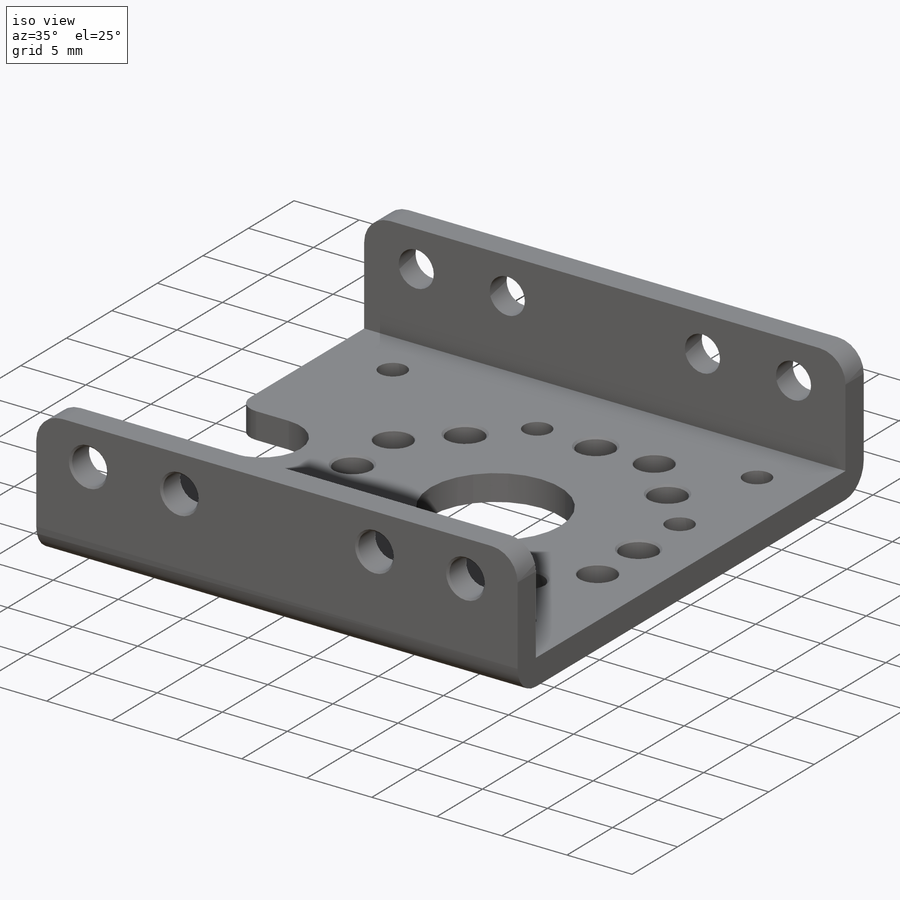
[diagram: iso view]
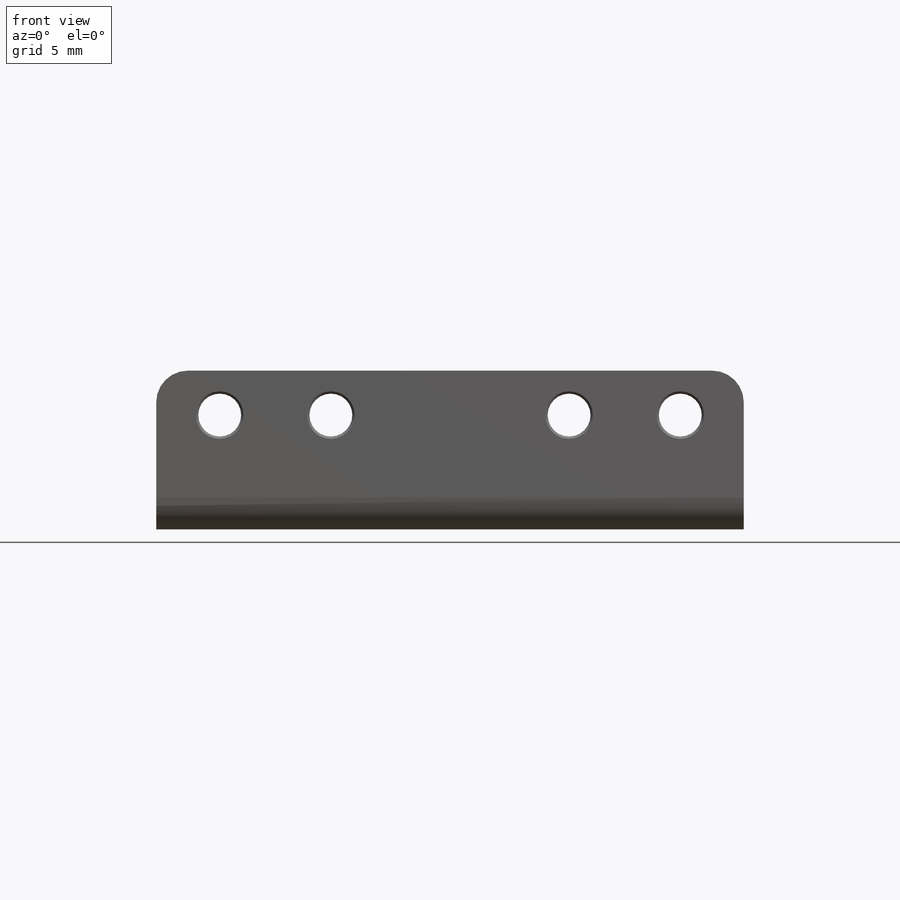
[diagram: front view]
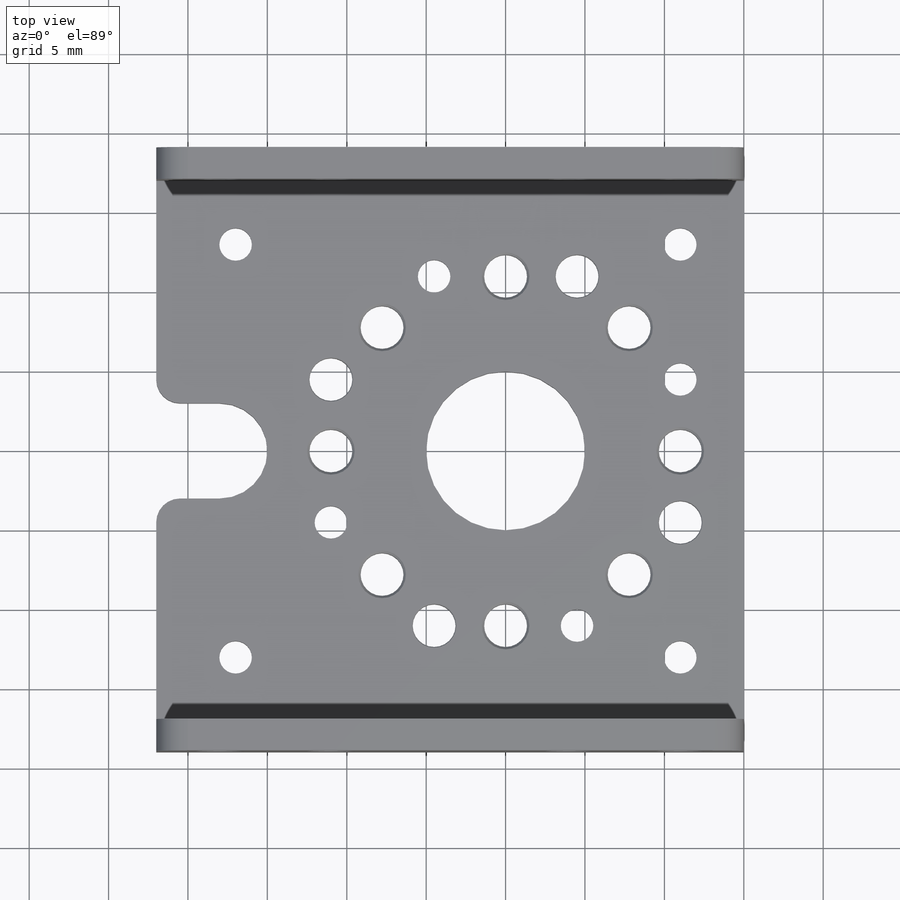
[diagram: top view]
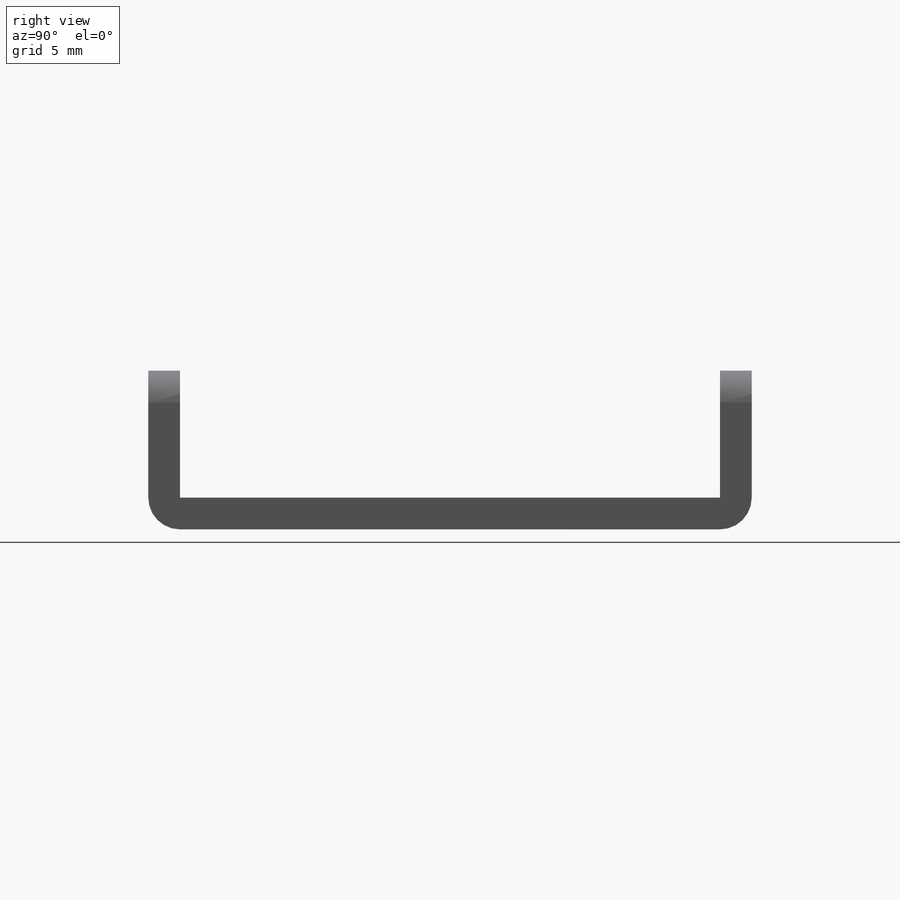
[diagram: right view]
SOLIDWORKS PART (.sldprt)
format: sldprt  version: not decoded by parser v0  size: 417,280 bytes
history: native  units: mm
features: sketch x13, hole x5, chamfer x3, cut_extrude x2, fillet x2, material x1, plane x1, extrude x1 (+13 scaffold rows collapsed)
feature tree (41):
  scaffold x13  (default folders/planes/origin — collapsed)
  material  "Material <not specified>"
  plane  "Plane1"  Offset=10mm
  sketch  "Sketch1"
  extrude  "Boss-Extrude1"  Depth=10mm
  sketch  "Sketch2"
  cut_extrude  "Cut-Extrude1"  Depth=37mm
  sketch  "Sketch3"
  cut_extrude  "Cut-Extrude2"  Depth=2mm
  hole  "Ø2.05 (2.05) Diameter Hole1"  Diameter=2.05mm Depth=10mm
  sketch  "Sketch5"
  sketch  "Sketch4"  dims[hole-wizard template sketch: 60 standard entries collapsed; hole parameters kept: c18.Thru Hole Depth=10.0mm]
  hole  "Ø10.0 (10) Diameter Hole1"  Diameter=10mm Depth=10mm
  sketch  "Sketch7"
  sketch  "Sketch6"  dims[hole-wizard template sketch: 60 standard entries collapsed; hole parameters kept: c18.Thru Hole Depth=10.0mm]
  hole  "Ø2.7 (2.7) Diameter Hole1"  Diameter=2.7mm Depth=2mm
  sketch  "Sketch9"
  sketch  "Sketch8"  dims[hole-wizard template sketch: 60 standard entries collapsed; hole parameters kept: c18.Thru Hole Depth=2.0mm]
  hole  "Ø2.7 (2.7) Diameter Hole2"  Diameter=2.7mm Depth=2mm
  sketch  "Sketch11"
  sketch  "Sketch10"  dims[hole-wizard template sketch: 60 standard entries collapsed; hole parameters kept: c18.Thru Hole Depth=2.0mm]
  hole  "Ø2.7 (2.7) Diameter Hole3"  Diameter=2.7mm Depth=38mm
  sketch  "Sketch13"
  sketch  "Sketch12"  dims[hole-wizard template sketch: 60 standard entries collapsed; hole parameters kept: c18.Thru Hole Depth=38.0mm]
  chamfer  "Chamfer1"  Distance=0.15mm Angle=45deg
  chamfer  "Chamfer2"  Distance=0.05mm Angle=45deg
  chamfer  "Chamfer3"  Distance=0.375mm Angle=45deg
  fillet  "Fillet1"  Radius=1.5mm
  fillet  "Fillet2"  Radius=2mm
decode coverage: 18 of 26 modeling features carry decoded parameters
note: ~ marks probable driven/reference dimensions
summary: Diameter pulled from absorbed wizard sketch
note: suppression state not decoded; provenance and decode notes live in map.json
